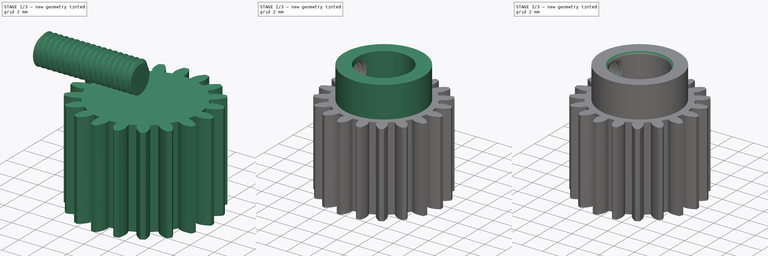
[diagram: build sequence overview — one tinted view per stage of 3, left to right]
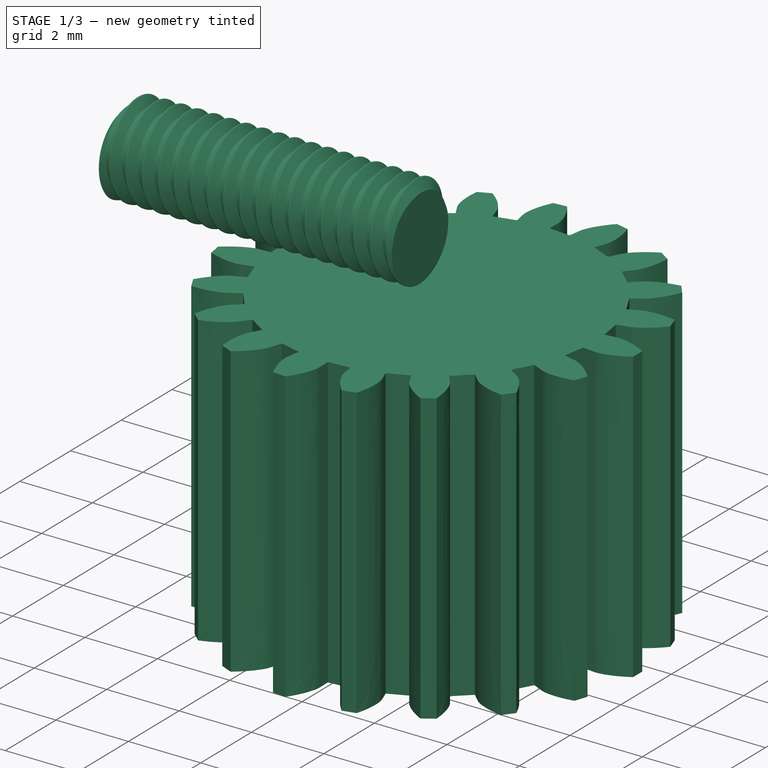
[diagram: stage 1 of 3 — iso view after this stage's code; geometry added in this stage tinted green]
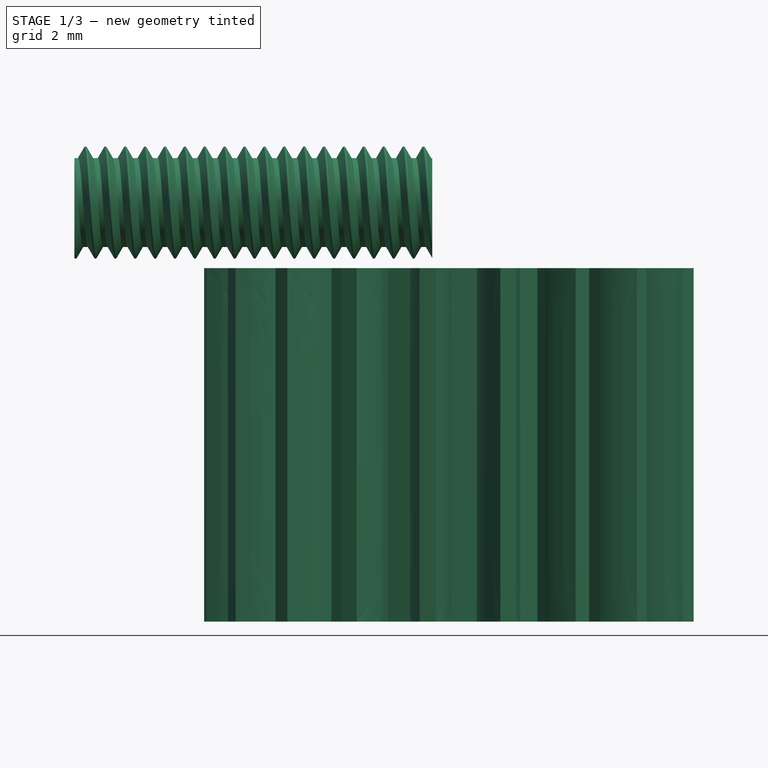
[diagram: stage 1 of 3 — front view after this stage's code; geometry added in this stage tinted green]
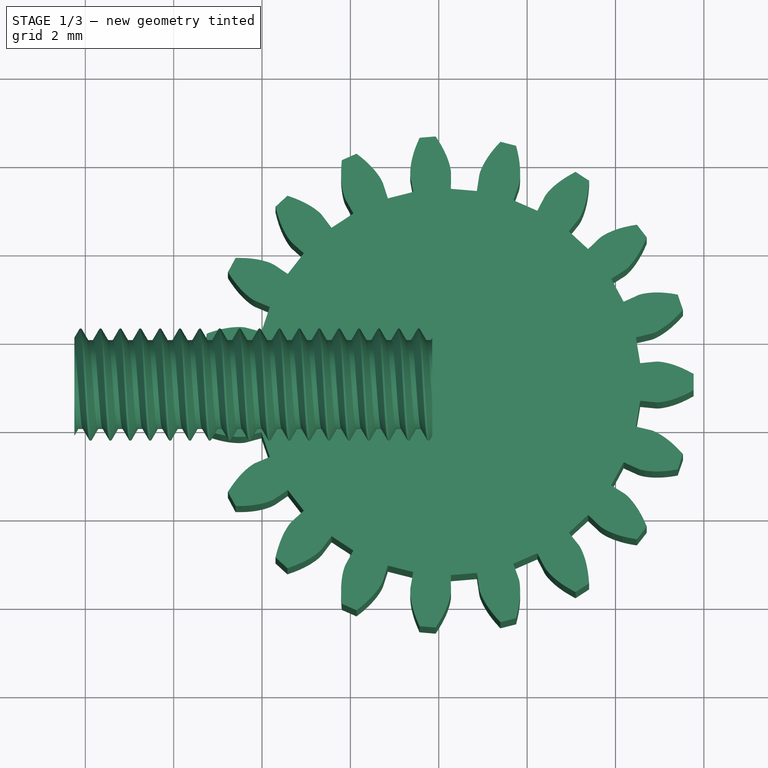
[diagram: stage 1 of 3 — top view after this stage's code; geometry added in this stage tinted green]
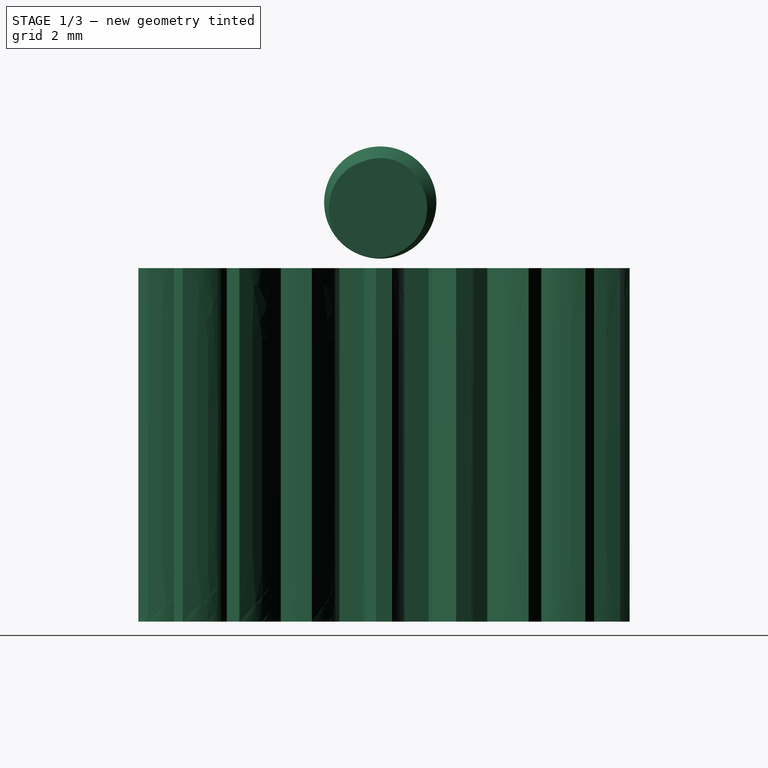
[diagram: stage 1 of 3 — right view after this stage's code; geometry added in this stage tinted green]
FCSTD DOCUMENT  (FreeCAD 0.16R6712 (Git))
Label: Robson-Gear
License: CreativeCommons Attribution-ShareAlike
LicenseURL: http://creativecommons.org/licenses/by-sa/4.0/
objects: Part::FeaturePython×2, Sketcher::SketchObject×2, PartDesign::Fillet×2, PartDesign::Pad×1, Part::Cut×1, PartDesign::Pocket×1, Part::Feature×1
note: 12 computed .brp shape members not serialized (recipe doc carries the construction recipe); baked Part::Feature solids carry a one-line shape summary decoded from their .brp

FEATURE [Part::FeaturePython] InvoluteGear  # WARN: FeaturePython — macro-defined, semantics opaque (R4)
  Placement = pos=(4.20655,61.0021,-25.4836) rot=(0,0,1;0rad)
  backlash = 0
  beta = 0
  clearance = 0.25
  height = 8
  module = 0.53
  numpoints = 6
  pressure_angle = 20
  shift = 0
  simple = false
  teeth = 19
  undercut = false
FEATURE [Part::FeaturePython] ScrewTap  label="M2.5x8.0-ScrewTap"  # Fasteners workbench fastener (typed FeaturePython)
  Placement = pos=(3.85192,60.9172,-16) rot=(0,1,0;1.5708rad)
  diameter = 3
  invert = false
  length = 8
  matchOuter = false
  offset = 0
  thread = true
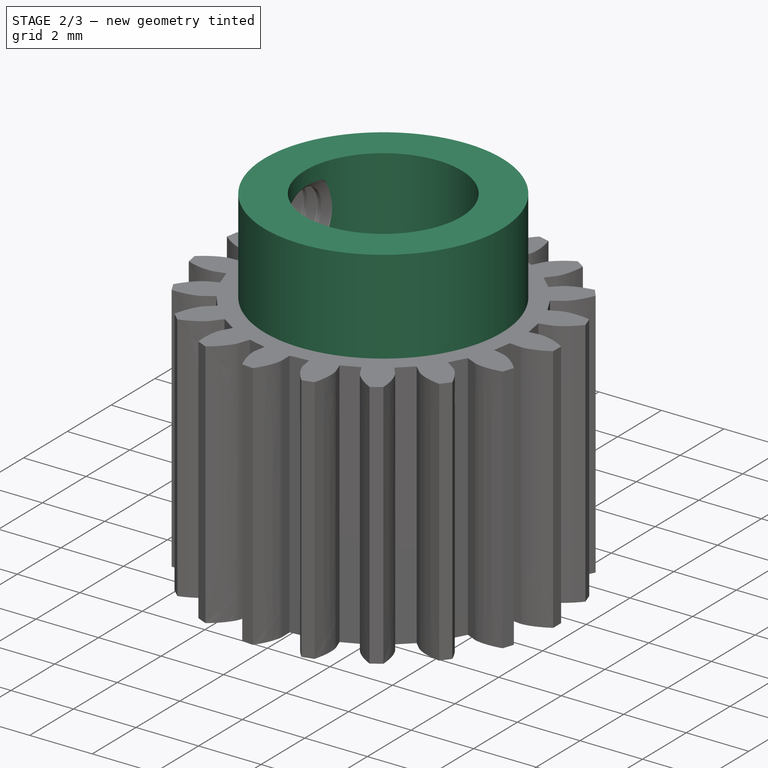
[diagram: stage 2 of 3 — iso view after this stage's code; geometry added in this stage tinted green]
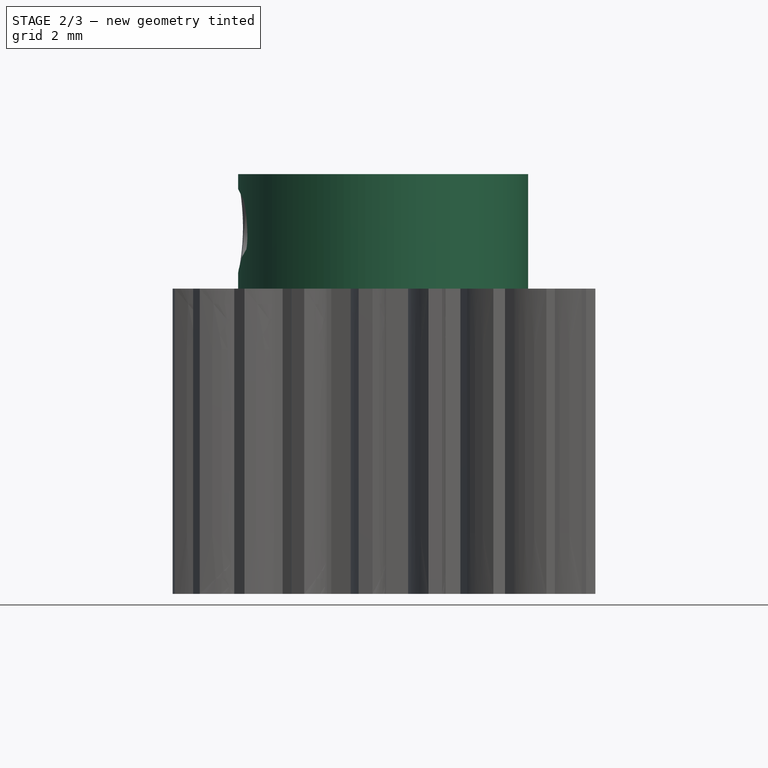
[diagram: stage 2 of 3 — front view after this stage's code; geometry added in this stage tinted green]
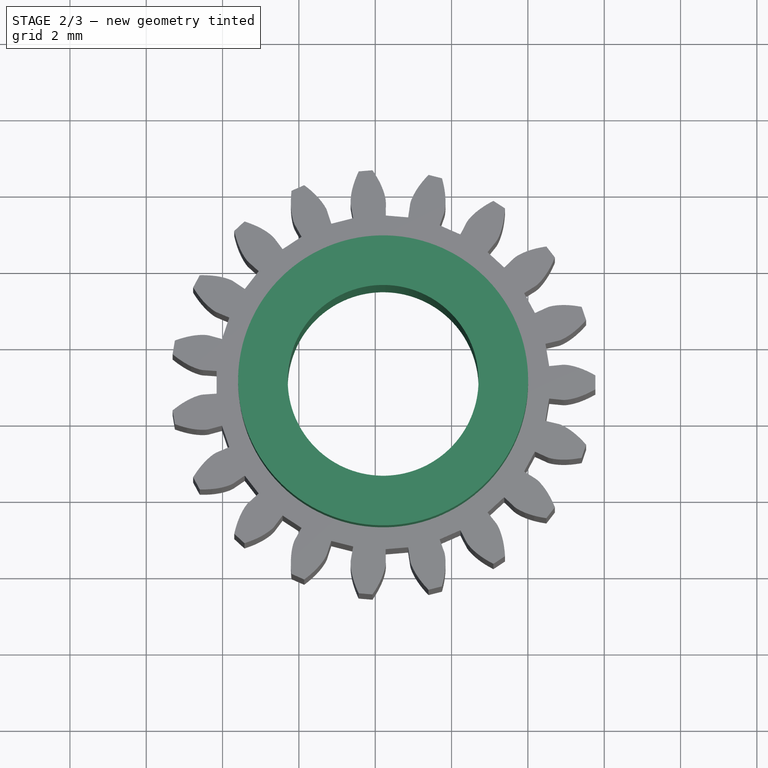
[diagram: stage 2 of 3 — top view after this stage's code; geometry added in this stage tinted green]
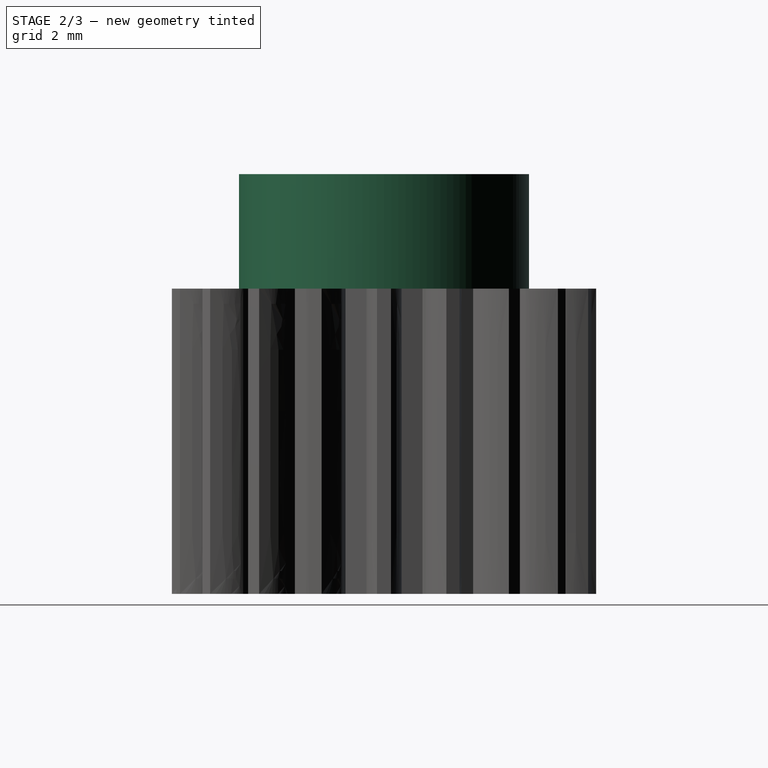
[diagram: stage 2 of 3 — right view after this stage's code; geometry added in this stage tinted green]
FEATURE [Sketcher::SketchObject] Sketch
  Placement = pos=(4.20655,61.0021,-17.4836) rot=(0,0,1;0rad)
  Support = -> InvoluteGear [Face116]
  sketch-geometry (1):
    g0: Circle CenterX=0 CenterY=0 CenterZ=0 NormalX=0 NormalY=0 NormalZ=1 Radius=3.8
  constraints (2):
    c: Coincident(g0,g-1)
    c: Radius(g0) = 3.8
FEATURE [PartDesign::Pad] Pad
  Length = 3
  Length2 = 100
  Placement = pos=(4.20655,61.0021,-25.4836) rot=(0,0,1;0rad)
  Sketch = -> Sketch
  Type = 0
FEATURE [Part::Cut] Cut
  Base = -> Pad
  Tool = -> ScrewTap
FEATURE [Sketcher::SketchObject] Sketch001
  ExternalGeometry = -> [Cut]
  Placement = pos=(0,0,-14.4836) rot=(0,0,1;0rad)
  Support = -> Cut [Face118]
  sketch-geometry (1):
    g0: Circle CenterX=4.20655 CenterY=61.0021 CenterZ=0 NormalX=0 NormalY=0 NormalZ=1 Radius=2.5
  constraints (2):
    c: Coincident(g0,g-3)
    c: Radius(g0) = 2.5
FEATURE [PartDesign::Pocket] Pocket
  Length = 5
  Sketch = -> Sketch001
  Type = 1
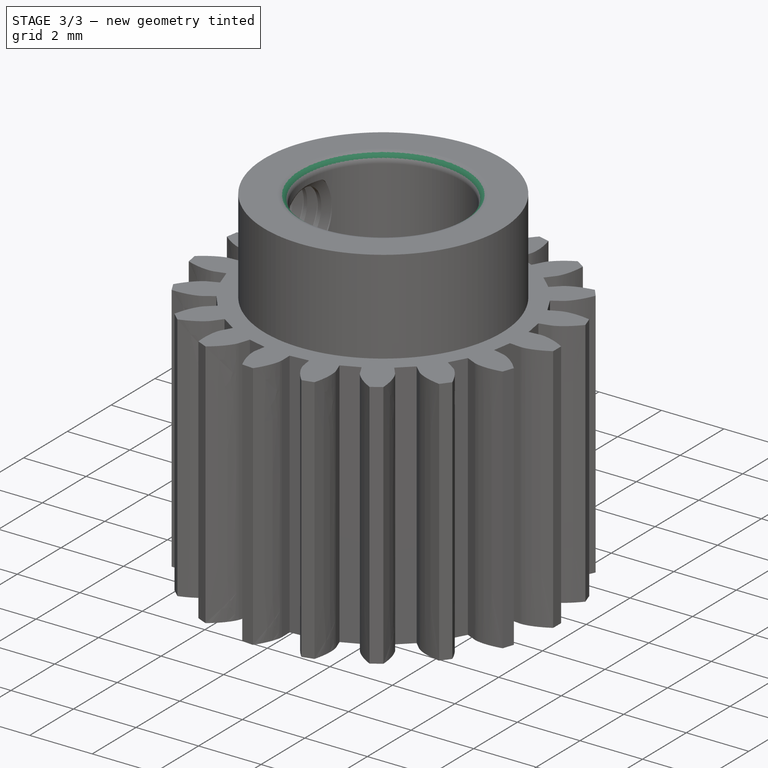
[diagram: stage 3 of 3 — iso view after this stage's code; geometry added in this stage tinted green]
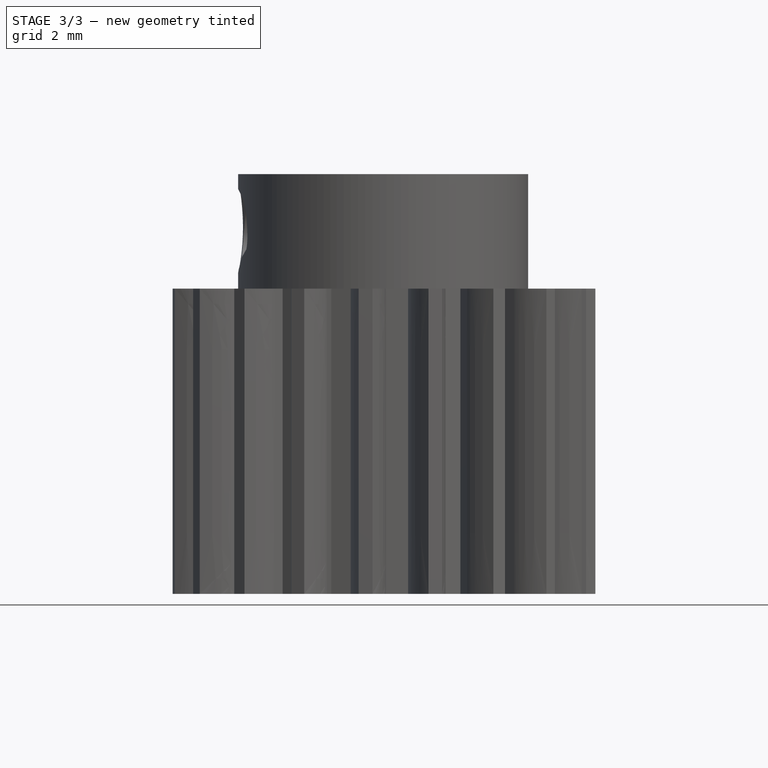
[diagram: stage 3 of 3 — front view after this stage's code; geometry added in this stage tinted green]
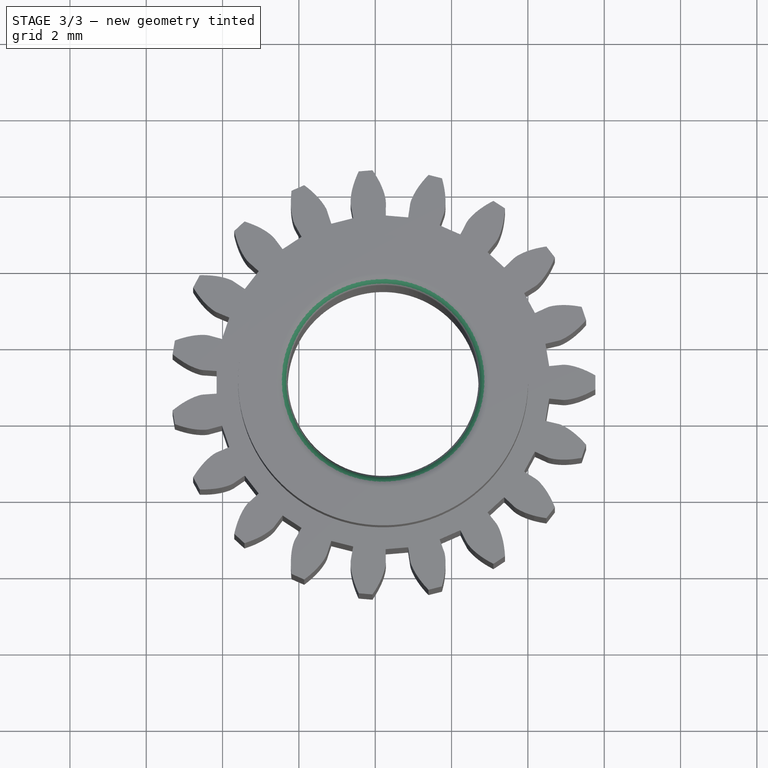
[diagram: stage 3 of 3 — top view after this stage's code; geometry added in this stage tinted green]
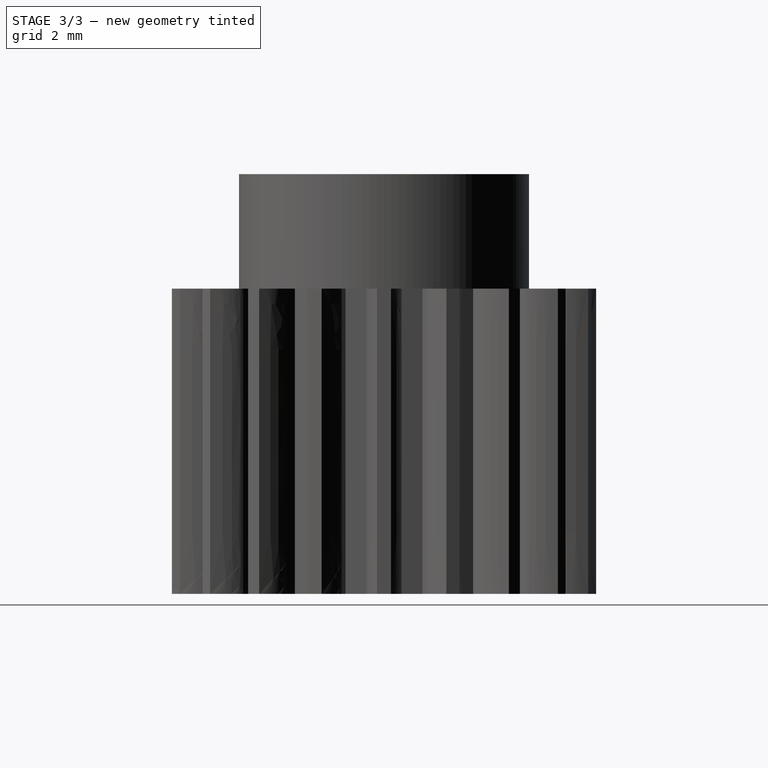
[diagram: stage 3 of 3 — right view after this stage's code; geometry added in this stage tinted green]
FEATURE [PartDesign::Fillet] Fillet
  Base = -> Pocket [Edge122]
  Radius = 0.3
FEATURE [PartDesign::Fillet] Fillet001
  Base = -> Fillet [Edge347]
  Radius = 0.3
FEATURE [Part::Feature] Fillet001_solid  label="Robinson Racing #2019 19T 48p Steel Pinion Gear"
  shape: bbox 11.08 x 11.12 x 11.84 mm, 142 faces (baked)
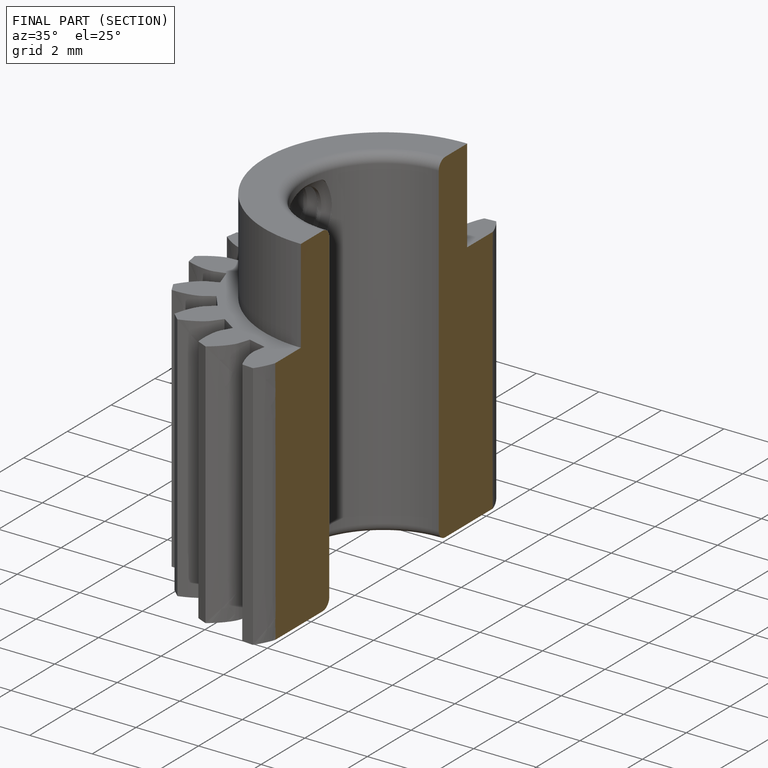
[diagram: finished part — half-section view (interior)]
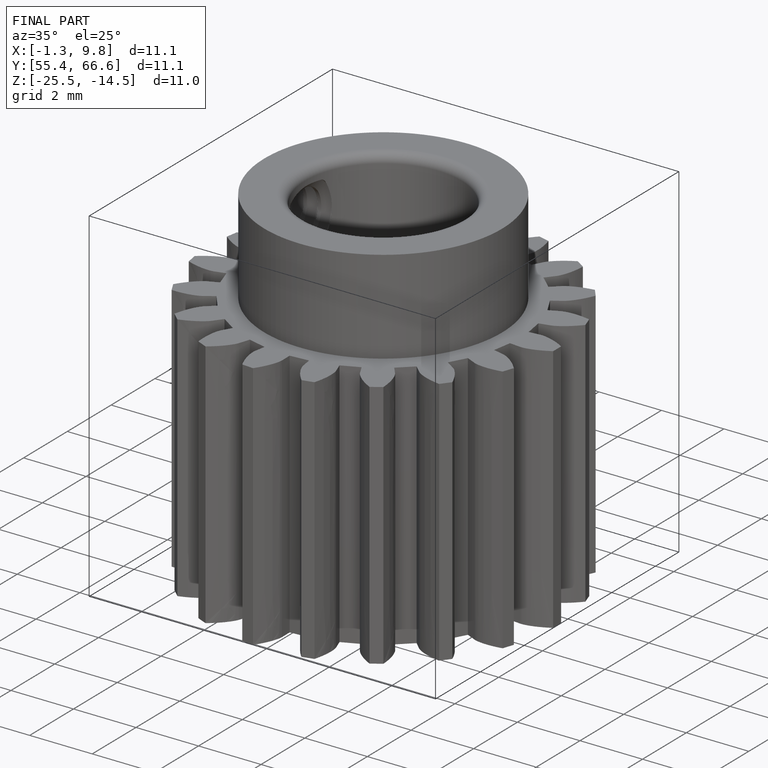
[diagram: finished part — iso view with bounding-box wireframe]
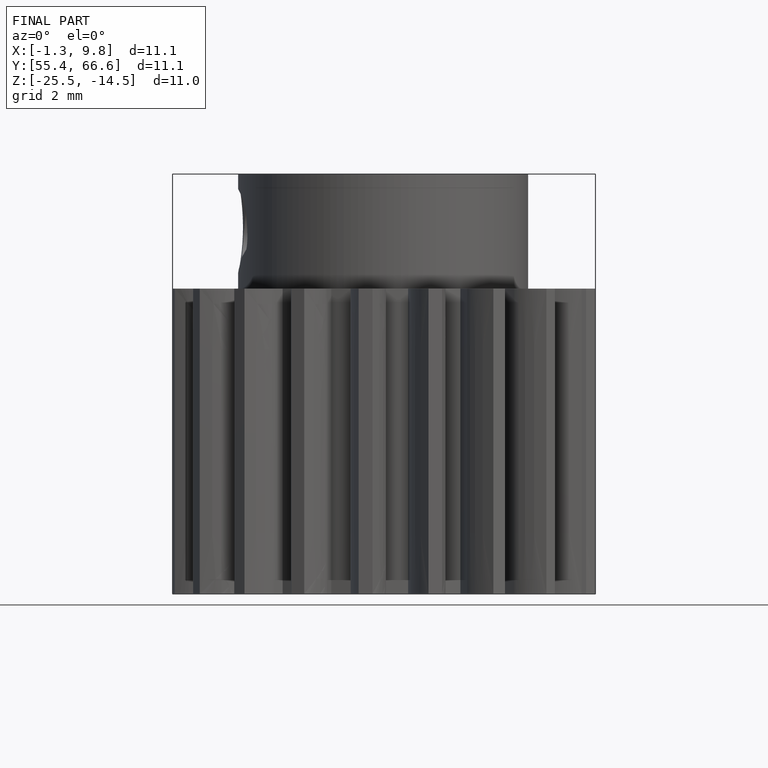
[diagram: finished part — front view with bounding-box wireframe]
